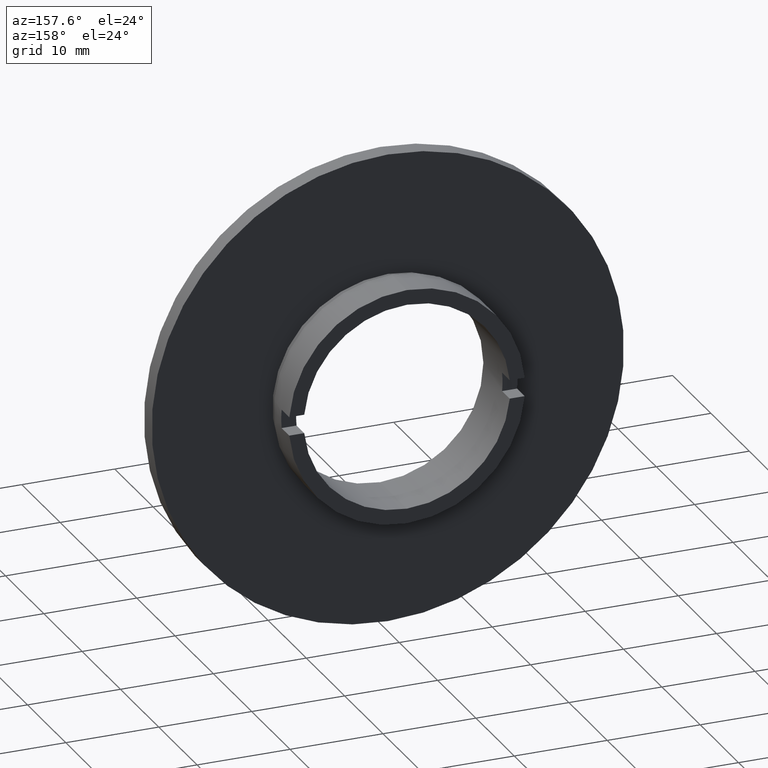
[diagram: clean part render]
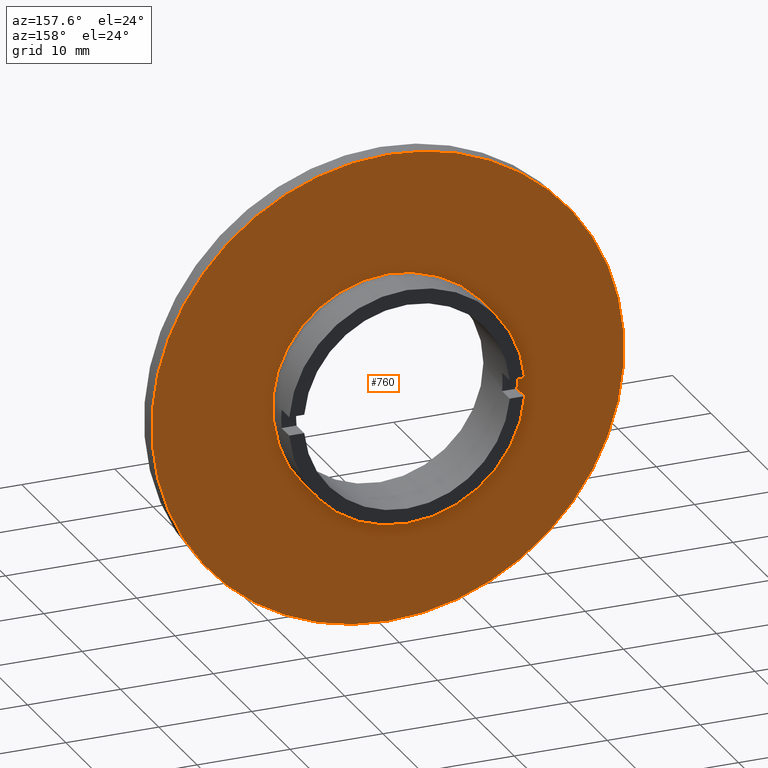
[diagram: same view with one face highlighted and labeled with its STEP entity id]
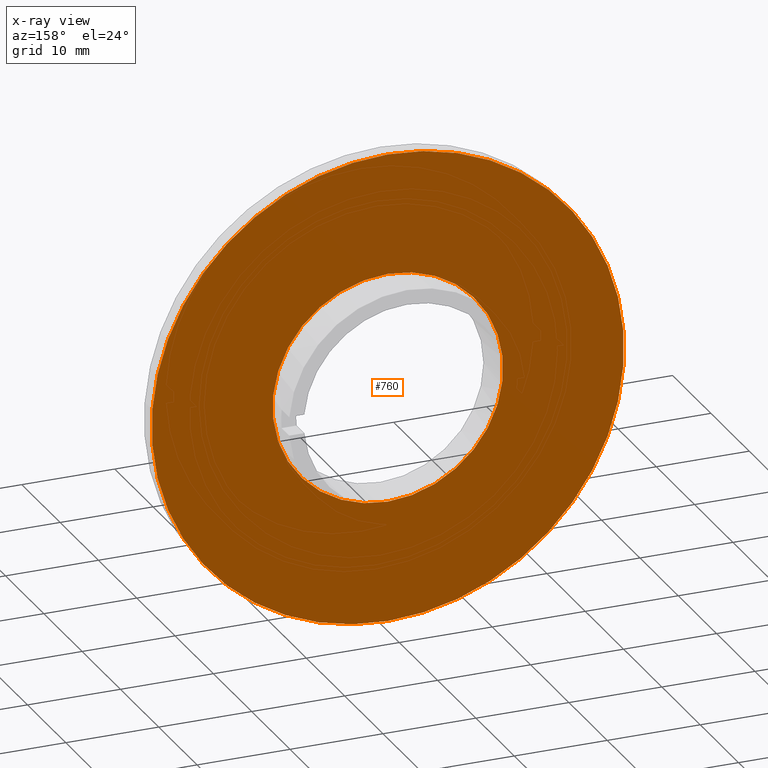
[diagram: x-ray of the same camera — body ghosted, the highlighted face saturated]
A machine part, auxiliary view. The second image highlights one B-rep face of the part: STEP entity #760.
The next image is the same camera in x-ray: the body ghosted, the highlighted face saturated — about 0% of this face is hidden behind the body in this view.
In plain terms, the highlighted planar face has unit normal (-0, 1, 0).
Its self-contained STEP definition (entity closure, byte-faithful):
#5 = VERTEX_POINT ( 'NONE', #568 ) ;
#33 = CIRCLE ( 'NONE', #1175, 12.39999999999999900 ) ;
#109 = CARTESIAN_POINT ( 'NONE',  ( 3.110602869834276500E-015, 6.999999999999999100, -25.39999999999999500 ) ) ;
#132 = EDGE_CURVE ( 'NONE', #256, #587, #270, .T. ) ;
#178 = CIRCLE ( 'NONE', #805, 12.39999999999999900 ) ;
#197 = DIRECTION ( 'NONE',  ( -0.0000000000000000000, 1.000000000000000000, -0.0000000000000000000 ) ) ;
#226 = ORIENTED_EDGE ( 'NONE', *, *, #1042, .F. ) ;
#256 = VERTEX_POINT ( 'NONE', #1336 ) ;
#269 = EDGE_CURVE ( 'NONE', #5, #908, #33, .T. ) ;
#270 = CIRCLE ( 'NONE', #756, 25.39999999999999500 ) ;
#284 = ORIENTED_EDGE ( 'NONE', *, *, #527, .T. ) ;
#343 = DIRECTION ( 'NONE',  ( 0.0000000000000000000, 0.0000000000000000000, 1.000000000000000000 ) ) ;
#353 = ORIENTED_EDGE ( 'NONE', *, *, #132, .T. ) ;
#356 = EDGE_LOOP ( 'NONE', ( #353, #284 ) ) ;
#384 = DIRECTION ( 'NONE',  ( -0.0000000000000000000, 1.000000000000000000, -0.0000000000000000000 ) ) ;
#459 = AXIS2_PLACEMENT_3D ( 'NONE', #729, #613, #721 ) ;
#497 = DIRECTION ( 'NONE',  ( 0.0000000000000000000, 0.0000000000000000000, 1.000000000000000000 ) ) ;
#527 = EDGE_CURVE ( 'NONE', #587, #256, #1331, .T. ) ;
#568 = CARTESIAN_POINT ( 'NONE',  ( 1.518562030942717800E-015, 6.999999999999999100, -12.39999999999999900 ) ) ;
#587 = VERTEX_POINT ( 'NONE', #109 ) ;
#613 = DIRECTION ( 'NONE',  ( -0.0000000000000000000, 1.000000000000000000, 0.0000000000000000000 ) ) ;
#685 = CARTESIAN_POINT ( 'NONE',  ( 0.0000000000000000000, 6.999999999999999100, 0.0000000000000000000 ) ) ;
#721 = DIRECTION ( 'NONE',  ( 0.0000000000000000000, 0.0000000000000000000, 1.000000000000000000 ) ) ;
#729 = CARTESIAN_POINT ( 'NONE',  ( -12.39999999999999900, 7.000000000000000000, 0.0000000000000000000 ) ) ;
#739 = FACE_BOUND ( 'NONE', #1304, .T. ) ;
#756 = AXIS2_PLACEMENT_3D ( 'NONE', #1227, #197, #343 ) ;
#760 = ADVANCED_FACE ( 'NONE', ( #1261, #739 ), #809, .T. ) ;
#805 = AXIS2_PLACEMENT_3D ( 'NONE', #1307, #971, #1317 ) ;
#809 = PLANE ( 'NONE',  #459 ) ;
#867 = CARTESIAN_POINT ( 'NONE',  ( 0.0000000000000000000, 6.999999999999999100, 12.39999999999999900 ) ) ;
#908 = VERTEX_POINT ( 'NONE', #867 ) ;
#909 = CARTESIAN_POINT ( 'NONE',  ( 0.0000000000000000000, 6.999999999999999100, 0.0000000000000000000 ) ) ;
#971 = DIRECTION ( 'NONE',  ( -0.0000000000000000000, 1.000000000000000000, -0.0000000000000000000 ) ) ;
#1002 = DIRECTION ( 'NONE',  ( -0.0000000000000000000, 1.000000000000000000, -0.0000000000000000000 ) ) ;
#1042 = EDGE_CURVE ( 'NONE', #908, #5, #178, .T. ) ;
#1090 = AXIS2_PLACEMENT_3D ( 'NONE', #909, #384, #1298 ) ;
#1175 = AXIS2_PLACEMENT_3D ( 'NONE', #685, #1002, #497 ) ;
#1227 = CARTESIAN_POINT ( 'NONE',  ( 0.0000000000000000000, 6.999999999999999100, 0.0000000000000000000 ) ) ;
#1261 = FACE_OUTER_BOUND ( 'NONE', #356, .T. ) ;
#1265 = ORIENTED_EDGE ( 'NONE', *, *, #269, .F. ) ;
#1298 = DIRECTION ( 'NONE',  ( 0.0000000000000000000, 0.0000000000000000000, 1.000000000000000000 ) ) ;
#1304 = EDGE_LOOP ( 'NONE', ( #226, #1265 ) ) ;
#1307 = CARTESIAN_POINT ( 'NONE',  ( 0.0000000000000000000, 6.999999999999999100, 0.0000000000000000000 ) ) ;
#1317 = DIRECTION ( 'NONE',  ( 0.0000000000000000000, 0.0000000000000000000, 1.000000000000000000 ) ) ;
#1331 = CIRCLE ( 'NONE', #1090, 25.39999999999999500 ) ;
#1336 = CARTESIAN_POINT ( 'NONE',  ( 0.0000000000000000000, 6.999999999999999100, 25.39999999999999500 ) ) ;